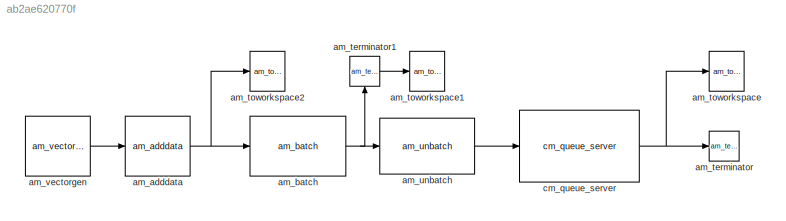
MODEL slx_ab2ae620770f
KIND model
CONFIG AbsTol = auto
CONFIG EnableMultiTasking = off
CONFIG FixedStep = auto
CONFIG MaxStep = auto
CONFIG MinStep = auto
CONFIG RelTol = 1e-3
CONFIG SampleTimeConstraint = Unconstrained
CONFIG SolverName = VariableStepAuto
CONFIG StartTime = 0.0
CONFIG StopTime = 10.0
BLOCK [Reference] am_adddata  REF=NSA_DEVS_LOGISTICS/am_adddata
  SourceBlock = NSA_DEVS_LOGISTICS/am_adddata
  SourceProductName = Logistics
  SourceType = Adddata
BLOCK [Reference] am_batch  REF=NSA_DEVS_LOGISTICS/am_batch
  SourceBlock = NSA_DEVS_LOGISTICS/am_batch
  SourceProductName = Logistics
  SourceType = Batch
BLOCK [Reference] am_terminator  REF=NSA_DEVS_LOGISTICS/am_terminator
  SourceBlock = NSA_DEVS_LOGISTICS/am_terminator
  SourceProductName = Logistics
  SourceType = Terminator
BLOCK [Reference] am_terminator1  REF=NSA_DEVS_LOGISTICS/am_terminator
  NameLocation = left
  SourceBlock = NSA_DEVS_LOGISTICS/am_terminator
  SourceProductName = Logistics
  SourceType = Terminator
BLOCK [Reference] am_toworkspace  REF=NSA_DEVS_SINKS/am_toworkspace
  SourceBlock = NSA_DEVS_SINKS/am_toworkspace
  SourceProductName = Sinks
  SourceType = ToWorkspace
BLOCK [Reference] am_toworkspace1  REF=NSA_DEVS_SINKS/am_toworkspace
  SourceBlock = NSA_DEVS_SINKS/am_toworkspace
  SourceProductName = Sinks
  SourceType = ToWorkspace
BLOCK [Reference] am_toworkspace2  REF=NSA_DEVS_SINKS/am_toworkspace
  SourceBlock = NSA_DEVS_SINKS/am_toworkspace
  SourceProductName = Sinks
  SourceType = ToWorkspace
BLOCK [Reference] am_unbatch  REF=NSA_DEVS_LOGISTICS/am_unbatch
  SourceBlock = NSA_DEVS_LOGISTICS/am_unbatch
  SourceProductName = Logistics
  SourceType = Unbatch
BLOCK [Reference] am_vectorgen  REF=NSA_DEVS_SOURCES/am_vectorgen
  SourceBlock = NSA_DEVS_SOURCES/am_vectorgen
  SourceProductName = Sources
  SourceType = Vectorgen
BLOCK [Reference] cm_queue_server  REF=NSA_DEVS_LOGISTICS/cm_queue_server
  SourceBlock = NSA_DEVS_LOGISTICS/cm_queue_server
  SourceProductName = Logistics
  SourceType = QueueServer
NET am_adddata:1 -> am_batch:1, am_toworkspace2:1
NET am_batch:1 -> am_terminator1:1, am_unbatch:1
LINE am_terminator1:1 -> am_toworkspace1:1
LINE am_unbatch:1 -> cm_queue_server:1
LINE am_vectorgen:1 -> am_adddata:1
NET cm_queue_server:1 -> am_terminator:1, am_toworkspace:1
note: NET lines group one-source signal fan-out (src -> all destinations, sorted); 1:1 wires keep LINE
